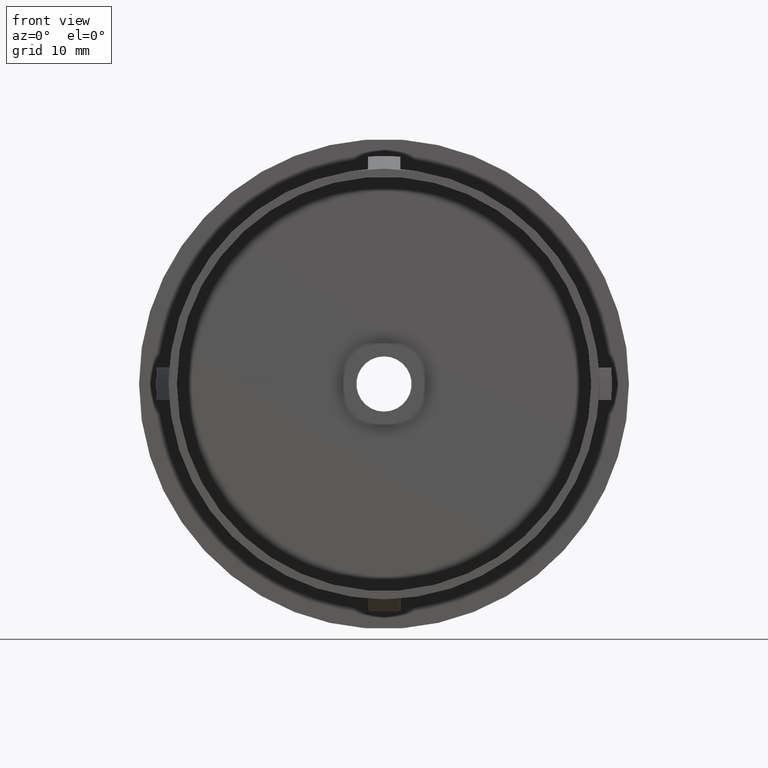
[diagram: clean part render]
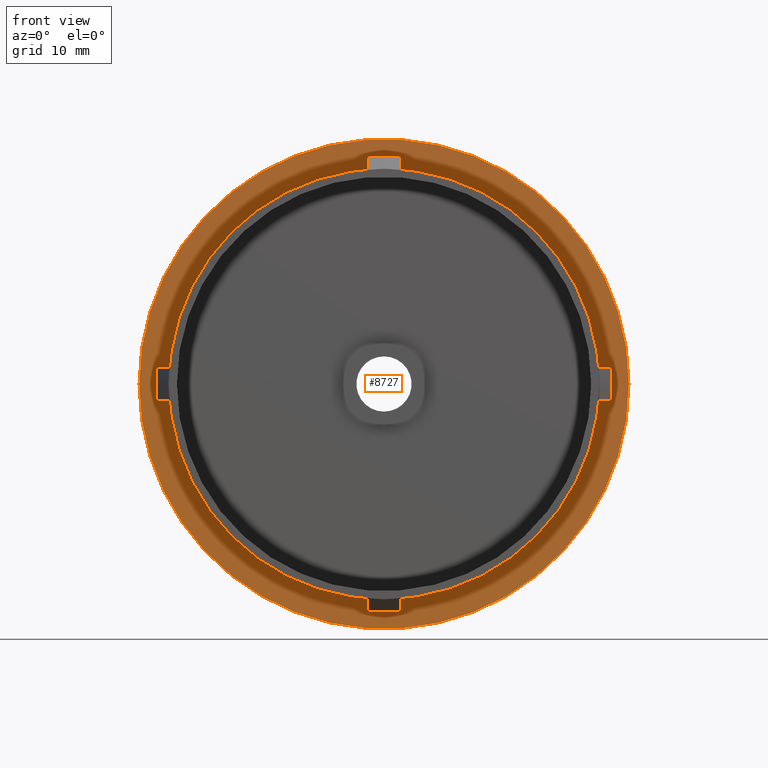
[diagram: same view with one face highlighted and labeled with its STEP entity id]
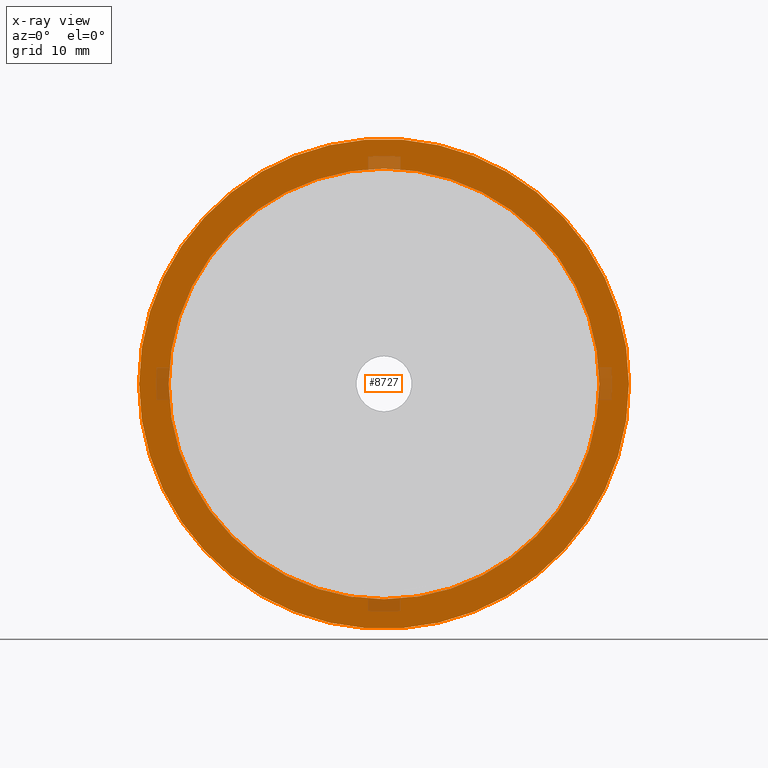
[diagram: x-ray of the same camera — body ghosted, the highlighted face saturated]
A machine part, front view. The second image highlights one B-rep face of the part: STEP entity #8727.
The next image is the same camera in x-ray: the body ghosted, the highlighted face saturated — about 4% of this face is hidden behind the body in this view.
In plain terms, the highlighted planar face has unit normal (-0, 1, 0).
Its self-contained STEP definition (entity closure, byte-faithful):
#297 = EDGE_LOOP ( 'NONE', ( #12852, #8802 ) ) ;
#500 = AXIS2_PLACEMENT_3D ( 'NONE', #8094, #1758, #2945 ) ;
#1758 = DIRECTION ( 'NONE',  ( -1.224646799147353200E-016, 1.000000000000000000, -0.0000000000000000000 ) ) ;
#2035 = DIRECTION ( 'NONE',  ( -1.224646799147353200E-016, 1.000000000000000000, -0.0000000000000000000 ) ) ;
#2457 = VERTEX_POINT ( 'NONE', #9248 ) ;
#2892 = VERTEX_POINT ( 'NONE', #8832 ) ;
#2945 = DIRECTION ( 'NONE',  ( -1.000000000000000000, -1.309225264888156400E-016, 0.0000000000000000000 ) ) ;
#3866 = EDGE_CURVE ( 'NONE', #12961, #2892, #15191, .T. ) ;
#4216 = EDGE_CURVE ( 'NONE', #2457, #6476, #12398, .T. ) ;
#5761 = DIRECTION ( 'NONE',  ( -1.000000000000000000, -1.150728673948131100E-016, 0.0000000000000000000 ) ) ;
#6209 = CIRCLE ( 'NONE', #8175, 26.50000000000000000 ) ;
#6476 = VERTEX_POINT ( 'NONE', #9322 ) ;
#6534 = DIRECTION ( 'NONE',  ( -1.000000000000000000, -1.309225264888156400E-016, 0.0000000000000000000 ) ) ;
#6986 = CIRCLE ( 'NONE', #8395, 30.14999999999999500 ) ;
#7153 = EDGE_CURVE ( 'NONE', #6476, #2457, #6209, .T. ) ;
#7199 = CARTESIAN_POINT ( 'NONE',  ( 1.836970198721031900E-016, 26.69999999999999900, 0.0000000000000000000 ) ) ;
#7240 = AXIS2_PLACEMENT_3D ( 'NONE', #12389, #8687, #9845 ) ;
#8094 = CARTESIAN_POINT ( 'NONE',  ( 1.836970198721030900E-016, 26.69999999999999900, 0.0000000000000000000 ) ) ;
#8175 = AXIS2_PLACEMENT_3D ( 'NONE', #12845, #14216, #6534 ) ;
#8232 = DIRECTION ( 'NONE',  ( -1.224646799147353200E-016, 1.000000000000000000, -0.0000000000000000000 ) ) ;
#8395 = AXIS2_PLACEMENT_3D ( 'NONE', #13184, #8232, #13294 ) ;
#8472 = AXIS2_PLACEMENT_3D ( 'NONE', #7199, #2035, #5761 ) ;
#8687 = DIRECTION ( 'NONE',  ( -1.224646799147353200E-016, 1.000000000000000000, 0.0000000000000000000 ) ) ;
#8727 = ADVANCED_FACE ( 'NONE', ( #14332, #12559 ), #13725, .F. ) ;
#8802 = ORIENTED_EDGE ( 'NONE', *, *, #3866, .F. ) ;
#8832 = CARTESIAN_POINT ( 'NONE',  ( -30.14999999999999500, 26.69999999999999600, 0.0000000000000000000 ) ) ;
#9248 = CARTESIAN_POINT ( 'NONE',  ( -26.50000000000000000, 26.69999999999999600, 0.0000000000000000000 ) ) ;
#9322 = CARTESIAN_POINT ( 'NONE',  ( 26.50000000000000000, 26.70000000000000300, 3.245314017740486200E-015 ) ) ;
#9328 = EDGE_CURVE ( 'NONE', #2892, #12961, #6986, .T. ) ;
#9845 = DIRECTION ( 'NONE',  ( -1.000000000000000000, -1.224646799147353200E-016, 0.0000000000000000000 ) ) ;
#11432 = CARTESIAN_POINT ( 'NONE',  ( 30.14999999999999500, 26.70000000000000300, 3.692310099429269600E-015 ) ) ;
#12389 = CARTESIAN_POINT ( 'NONE',  ( 30.14999999999999500, 26.70000000000000300, 0.0000000000000000000 ) ) ;
#12398 = CIRCLE ( 'NONE', #500, 26.50000000000000000 ) ;
#12559 = FACE_BOUND ( 'NONE', #12869, .T. ) ;
#12580 = ORIENTED_EDGE ( 'NONE', *, *, #7153, .T. ) ;
#12845 = CARTESIAN_POINT ( 'NONE',  ( 1.836970198721030900E-016, 26.69999999999999900, 0.0000000000000000000 ) ) ;
#12852 = ORIENTED_EDGE ( 'NONE', *, *, #9328, .F. ) ;
#12869 = EDGE_LOOP ( 'NONE', ( #14021, #12580 ) ) ;
#12961 = VERTEX_POINT ( 'NONE', #11432 ) ;
#13184 = CARTESIAN_POINT ( 'NONE',  ( 1.836970198721031900E-016, 26.69999999999999900, 0.0000000000000000000 ) ) ;
#13294 = DIRECTION ( 'NONE',  ( -1.000000000000000000, -1.150728673948131100E-016, 0.0000000000000000000 ) ) ;
#13725 = PLANE ( 'NONE',  #7240 ) ;
#14021 = ORIENTED_EDGE ( 'NONE', *, *, #4216, .T. ) ;
#14216 = DIRECTION ( 'NONE',  ( -1.224646799147353200E-016, 1.000000000000000000, -0.0000000000000000000 ) ) ;
#14332 = FACE_OUTER_BOUND ( 'NONE', #297, .T. ) ;
#15191 = CIRCLE ( 'NONE', #8472, 30.14999999999999500 ) ;